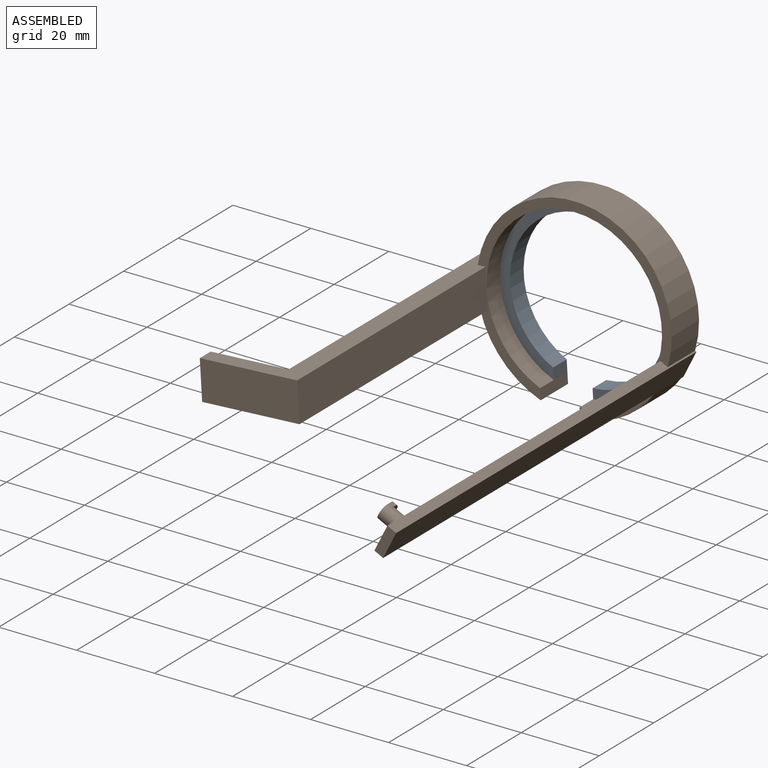
[diagram: assembled view]
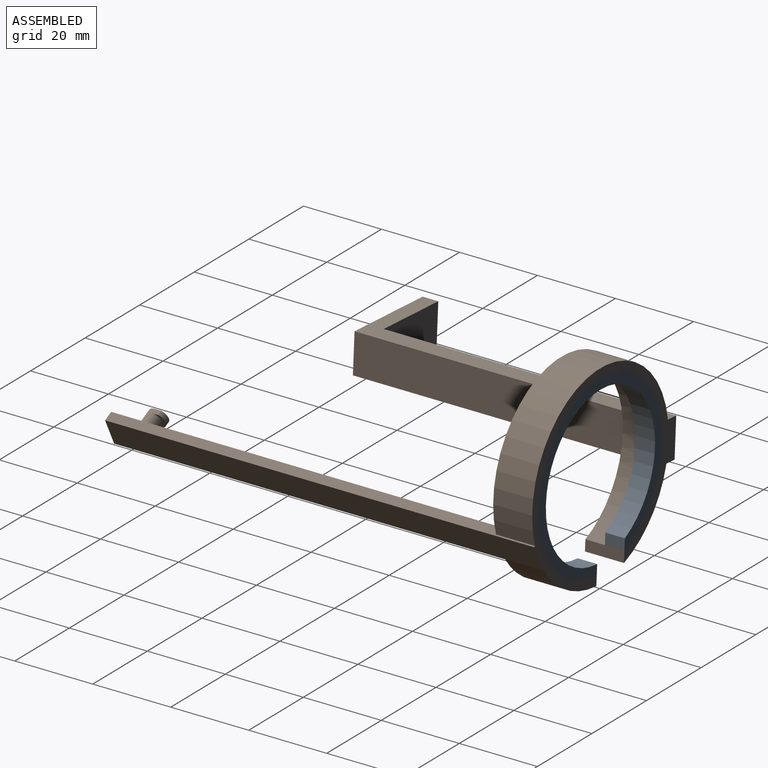
[diagram: assembled view, second angle]
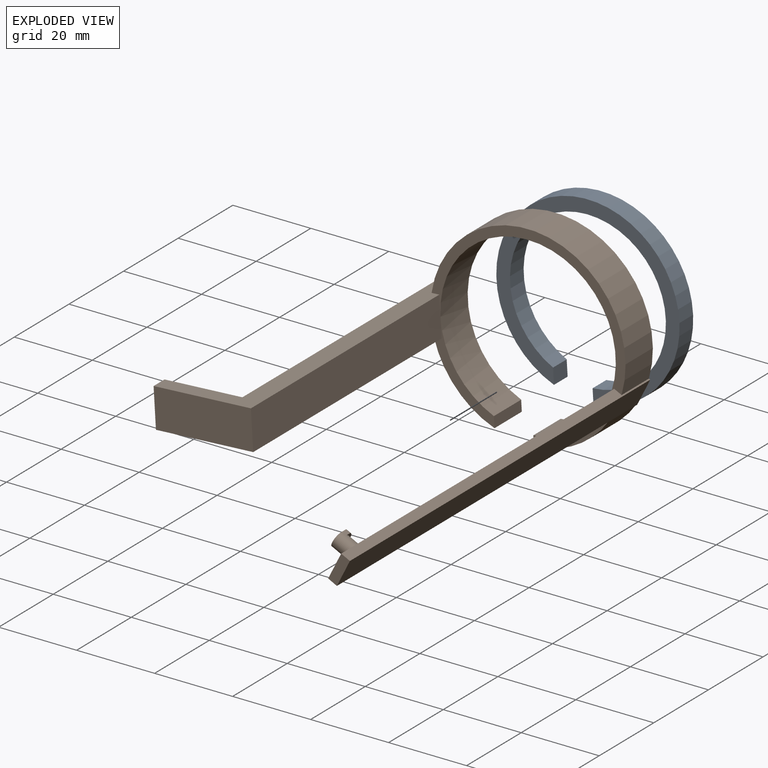
[diagram: exploded view]
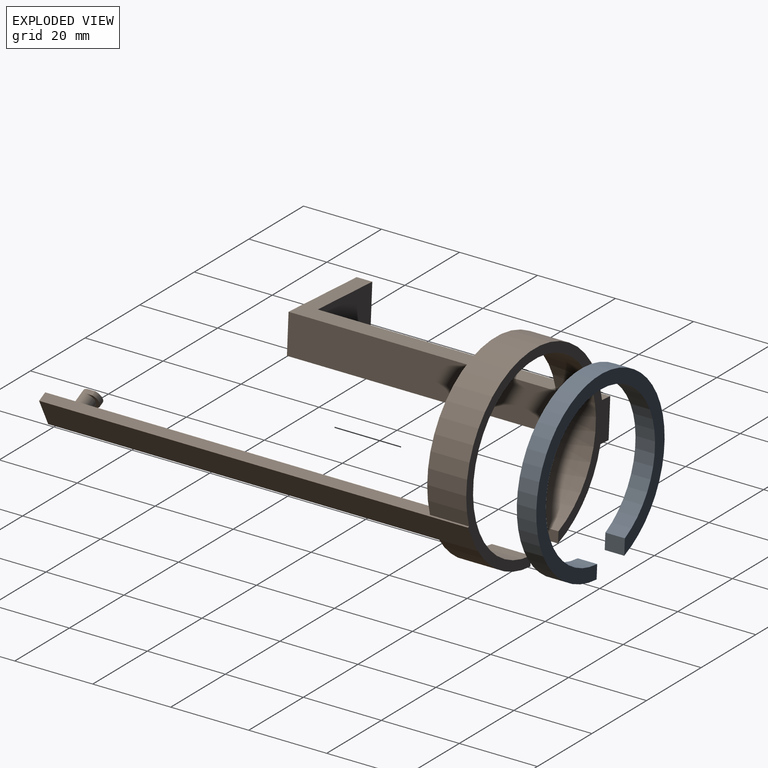
[diagram: exploded view, second angle]
ASSEMBLY  parts=2 mates=2
PART A: 6 faces, bbox 47x5x47 mm
  f0: cylinder r=20mm len=40mm, axis (0,1,0), area 576mm2, adj f2,f3,f4,f5
  f1: cylinder r=23.5mm len=47mm, axis (0,1,0), area 686.6mm2, adj f2,f3,f4,f5
  f2: plane 47x46.96mm, normal (0,-1,0), area 441.9mm2, adj f0,f1,f4,f5
  f3: plane 47x46.96mm, normal (0,1,0), area 441.9mm2, adj f0,f1,f4,f5
  f4: plane 5x3.49mm, normal (-1,0,-0.06), area 17.5mm2, adj f0,f1,f2,f3
  f5: plane 5x3.94mm, normal (1,0,0.06), area 19.7mm2, adj f0,f1,f2,f3
PART B: 28 faces, bbox 72.7x110x50 mm
  f0: plane 1.67x1.12mm, normal (-0.45,0,-0.89), area 2.1mm2, adj f1,f20,f21,f27
  f1: plane 3.58x3mm, normal (0.89,0,-0.45), area 4.2mm2, adj f0,f2,f20,f27
  f2: plane 1.67x1.12mm, normal (0.45,0,0.89), area 2.1mm2, adj f1,f20,f21,f27
  f3: cylinder r=25mm len=19.33mm, axis (0,-1,0), area 231.2mm2, adj f4,f10,f14,f25
  f4: plane 19.48x14.89mm, normal (0,-1,0), area 54.7mm2, adj f3,f9,f13,f14,f25
  f5: cylinder r=25mm len=17.07mm, axis (0,-1,0), area 240.1mm2, adj f6,f10,f18,f26
  f6: plane 22.12x15.56mm, normal (0,-1,0), area 55.9mm2, adj f5,f9,f18,f19,f26
  f7: cylinder r=25mm len=49.74mm, axis (0,-1,0), area 821.1mm2, adj f8,f10,f12,f16
  f8: plane 49.74x35.06mm, normal (0,-1,0), area 195.4mm2, adj f7,f9,f12,f13,f16,f19
  f9: cylinder r=22.5mm len=45mm, axis (0,-1,0), area 1310.1mm2, adj f4,f6,f8,f10,f25,f26
  f10: plane 52.75x49.96mm, normal (0,1,0), area 374.7mm2, adj f3,f5,f7,f9,f11,f12,f14,f16
  f11: plane 110x6.67mm, normal (0.89,0,-0.45), area 819.9mm2, adj f10,f12,f14,f15
  f12: plane 110x2.24mm, normal (0.45,0,0.89), area 253.9mm2, adj f7,f8,f10,f11,f13,f15
  f13: plane 100x6.67mm, normal (-0.89,0,0.45), area 732.8mm2, adj f4,f8,f12,f14,f15,f20
  f14: plane 110x2.24mm, normal (-0.45,0,-0.89), area 251.9mm2, adj f3,f4,f10,f11,f13,f15
  f15: plane 7.78x5.57mm, normal (0,-1,0), area 18.6mm2, adj f11,f12,f13,f14
  f16: plane 79x24.96mm, normal (-0.06,0,1), area 455.2mm2, adj f7,f8,f10,f17,f19,f22,f23,f24
  f17: plane 75x9.98mm, normal (-1,0,-0.06), area 750mm2, adj f10,f16,f18,f23
  f18: plane 79x24.96mm, normal (0.06,0,-1), area 454.9mm2, adj f5,f6,f10,f17,f19,f22,f23,f24
  f19: plane 69x9.98mm, normal (1,0,0.06), area 690mm2, adj f6,f8,f16,f18,f22
  f20: cylinder r=2mm len=6.26mm, axis (0.89,0,-0.45), area 55mm2, adj f0,f1,f2,f13,f21
  f21: plane 5x3.58mm, normal (-0.89,0,0.45), area 16.8mm2, adj f0,f2,f20,f27
  f22: plane 25.55x11.48mm, normal (0,-1,0), area 250mm2, adj f16,f18,f19,f24
  f23: plane 20.56x11.18mm, normal (0,1,0), area 200mm2, adj f16,f17,f18,f24
  f24: plane 9.98x4mm, normal (-1,0,-0.06), area 40mm2, adj f16,f18,f22,f23
  f25: plane 10x2.5mm, normal (-1,0,-0.06), area 25mm2, adj f3,f4,f9,f10
  f26: plane 10x2.75mm, normal (1,0,0.06), area 27.6mm2, adj f5,f6,f9,f10
  f27: cylinder r=2.17mm len=4.14mm, axis (-0.89,0,0.45), area 6.4mm2, adj f0,f1,f2,f21
PLACE A t=(1.65,1.34,2.63)mm
PLACE B t=(1.65,1.34,2.63)mm
MATE cylindrical A.f1 <-> B.f9  axis (0,1,0) through (1.65,-1.16,2.63)mm
MATE planar A.f3 <-> B.f3  axis (0,1,0) through (1.96,1.34,4.37)mm
